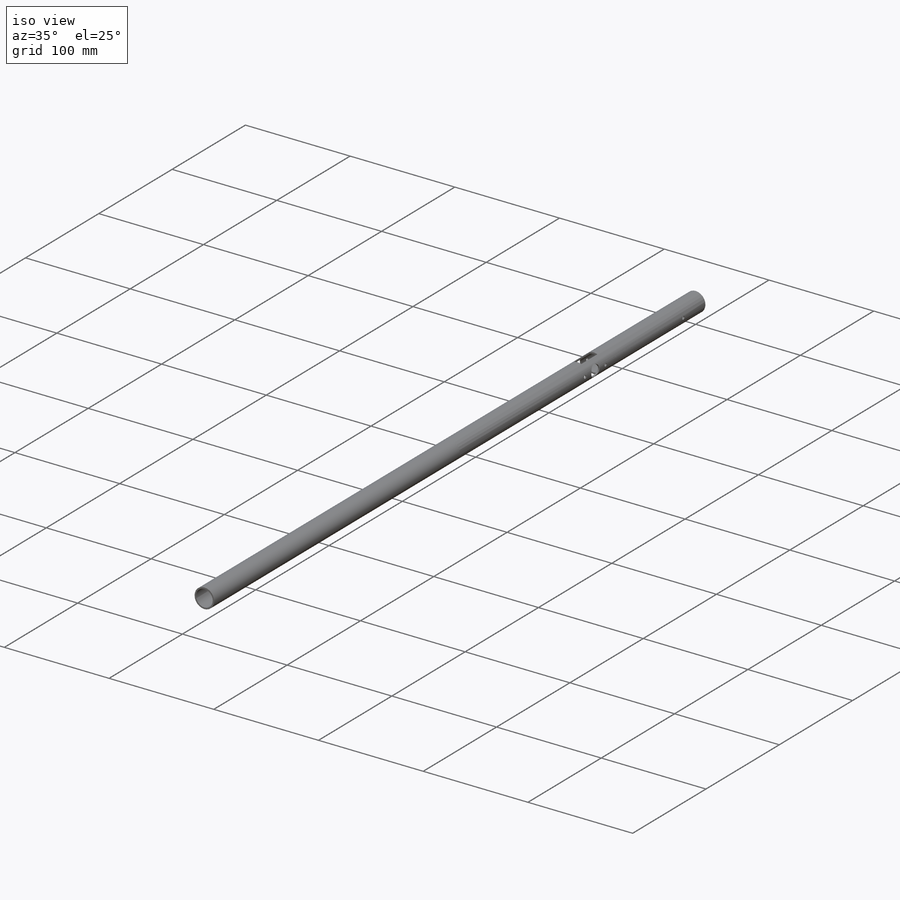
[diagram: iso view]
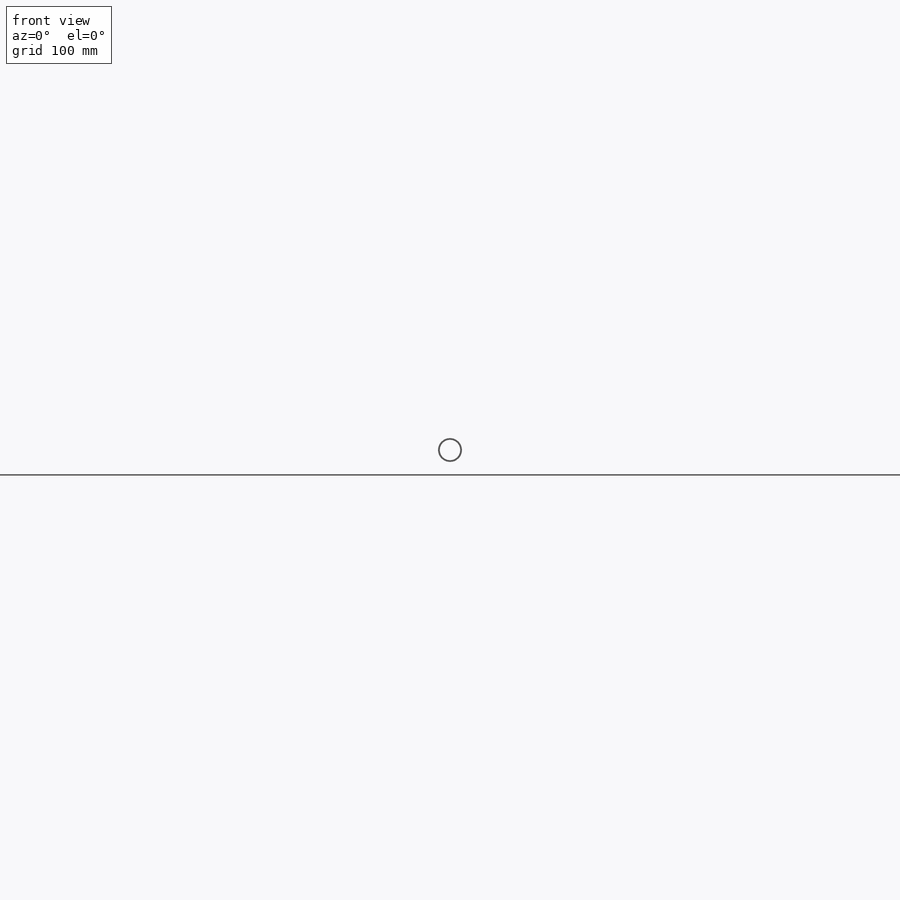
[diagram: front view]
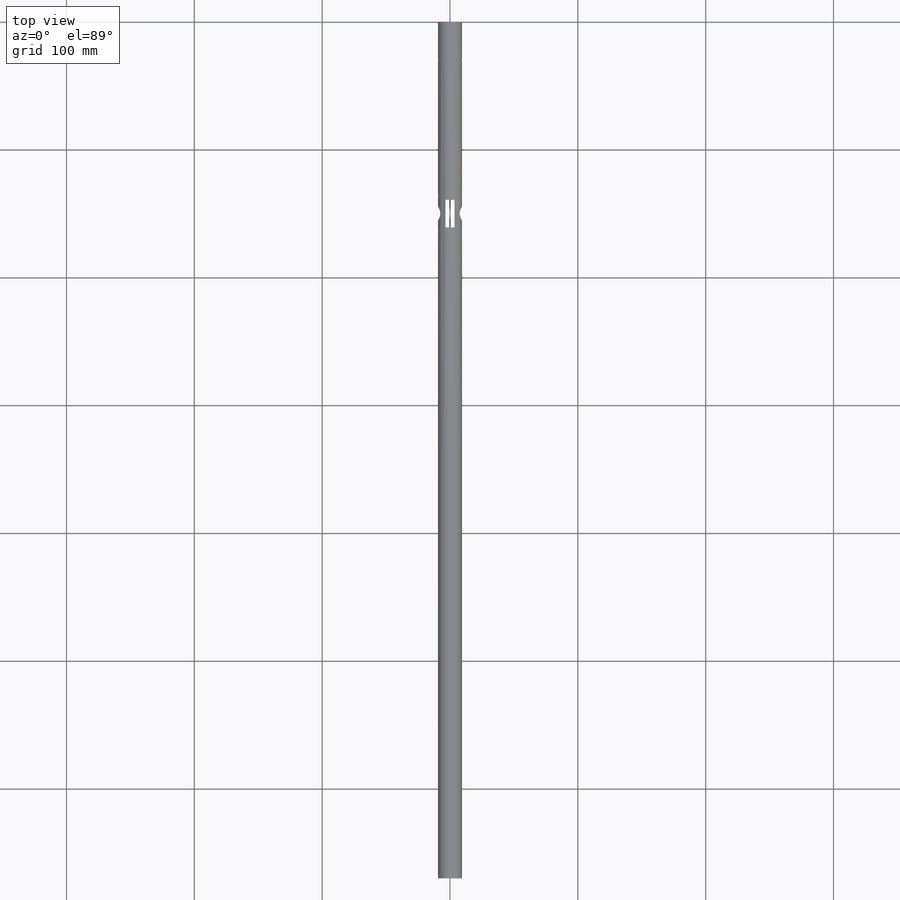
[diagram: top view]
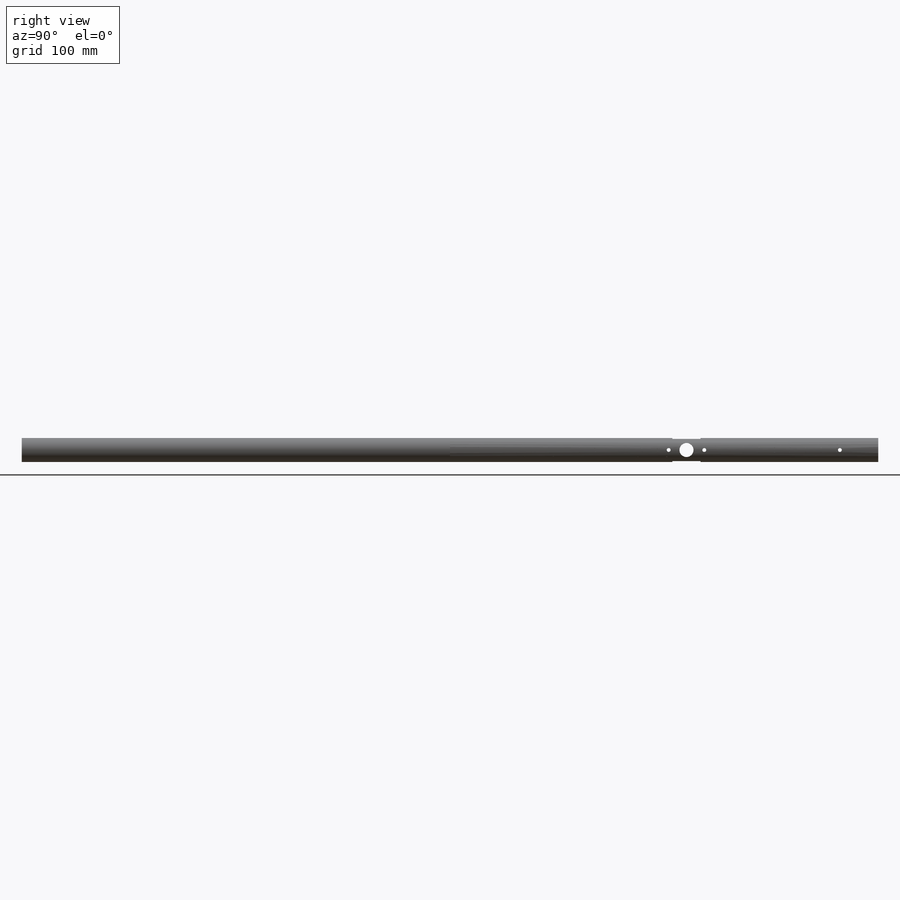
[diagram: right view]
SOLIDWORKS PART (.sldprt)
format: sldprt  version: not decoded by parser v0  size: 224,768 bytes
history: native  units: mm
features: sketch x3, cut_extrude x2, material x1, extrude x1 + 1 further entry (+14 scaffold rows collapsed)
feature tree (22):
  scaffold x14  (default folders/planes/origin — collapsed)
  material  "6061-T4 (SS)"
  "Annotations"  RD2=670mm RD1=18.72mm RD4=15.98mm
  sketch  "Sketch1"  dims[D1=7.875mm]
  extrude  "Extrude1"  Depth=670mm
  sketch  "Sketch2"  dims[c1.D2=~3.301584mm c1.D3=5.0mm c1.D5=2.0125mm c1.D1=30.0mm c2.D2=150.0mm c2.D3=13.9375mm c2.D4=13.9375mm c2.D5=506.0625mm]
  cut_extrude  "Extrude2"  [1 undecoded]
  sketch  "Sketch3"  dims[D1=150.0mm D2=11.0mm D3=22.0mm D4=3.5mm D5=7.0mm]
  cut_extrude  "Extrude3"  Depth=25mm
decode coverage: 5 of 6 modeling features carry decoded parameters; 1 rows unclassified (native names shown)
note: ~ marks probable driven/reference dimensions
note: 1 parameter value undecoded
note: suppression state not decoded; provenance and decode notes live in map.json
